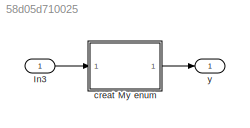
MODEL slx_58d05d710025
KIND model
CONFIG AbsTol = auto
CONFIG EnableMultiTasking = off
CONFIG FixedStep = auto
CONFIG MaxStep = auto
CONFIG MinStep = auto
CONFIG RelTol = 1e-3
CONFIG SampleTimeConstraint = Unconstrained
CONFIG SolverName = VariableStepAuto
CONFIG StartTime = 0.0
CONFIG StopTime = 10.0
BLOCK [Inport] In3
  OutDataTypeStr = Enum: enum1
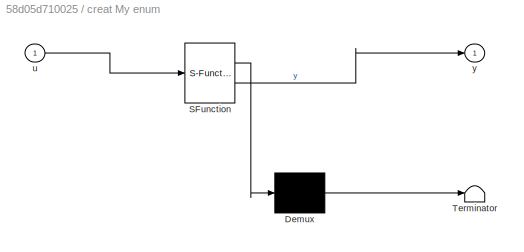
BLOCK [SubSystem] creat My enum
  ErrorFcn = Stateflow.Translate.translate
  PermitHierarchicalResolution = ExplicitOnly
  Ports = [1, 1]
  RequestExecContextInheritance = off
  SFBlockType = MATLAB Function
  TreatAsAtomicUnit = on
BLOCK [Demux] creat My enum/ Demux 
  Outputs = 1
  Ports = [1, 1]
BLOCK [S-Function] creat My enum/ SFunction 
  EnableBusSupport = on
  FunctionName = sf_sfun
  PortCounts = [1 2]
  Ports = [1, 2]
  SFcnIsStateOwnerBlock = off
  SFunctionDeploymentMode = off
  Tag = Stateflow S-Function 2
BLOCK [Terminator] creat My enum/ Terminator 
BLOCK [Inport] creat My enum/u
BLOCK [Outport] creat My enum/y
BLOCK [Outport] y
LINE In3:1 -> creat My enum:1
LINE creat My enum:1 -> y:1
CHART creat My enum states=1 transitions=1
  STATE_LABEL 'eML_blk_kernel()'
  STATE_LABEL 'SCRIPT:\nfunction y = fcn(u)\nclassdef enum1 < Simulink.IntEnumType\n    enumeration\n        ele1(1),\n        ele2(2),\n    end\nend\ny = u;\n'
CHART  states=0 transitions=0
